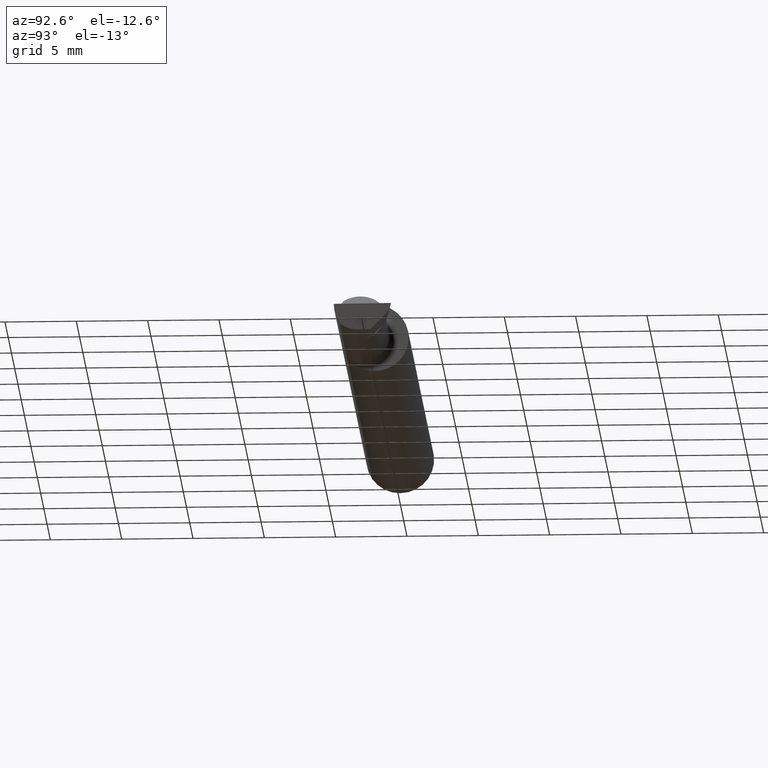
[diagram: clean part render]
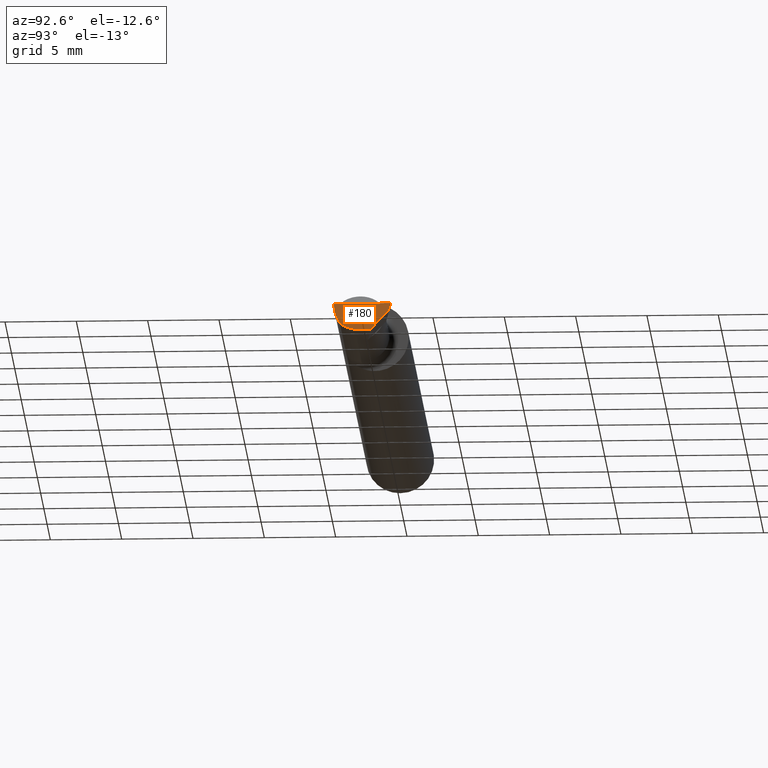
[diagram: same view with one face highlighted and labeled with its STEP entity id]
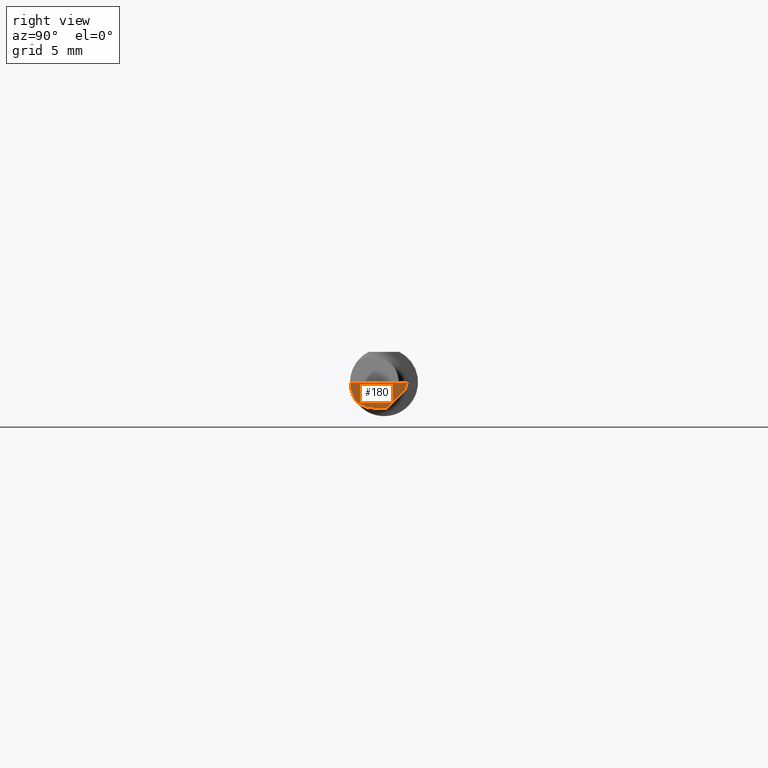
[diagram: same view with one face highlighted and labeled with its STEP entity id]
A machine part, auxiliary view. The second image highlights one B-rep face of the part: STEP entity #180.
A second angle (right view) of the same face is appended — the face is thin or edge-on in the first view.
In plain terms, the highlighted planar face has unit normal (-0.9922, 0.026, 0.1219).
Its self-contained STEP definition (entity closure, byte-faithful):
#6 = CARTESIAN_POINT ( 'NONE',  ( 1.989680968235101988, -0.07646557377049184590, -0.05398125626501730501 ) ) ;
#23 = CARTESIAN_POINT ( 'NONE',  ( 2.000000000000003109, 0.06440000000001327995, 4.265097680108330883E-14 ) ) ;
#25 = AXIS2_PLACEMENT_3D ( 'NONE', #160, #256, #347 ) ;
#42 = CARTESIAN_POINT ( 'NONE',  ( 1.987153287650115008, -0.009717623157789186117, -0.08879077981908643780 ) ) ;
#52 = EDGE_CURVE ( 'NONE', #364, #545, #431, .T. ) ;
#53 = CARTESIAN_POINT ( 'NONE',  ( 1.997375993425184904, 0.05800444260848384992, -0.01999999999999999001 ) ) ;
#74 = ORIENTED_EDGE ( 'NONE', *, *, #52, .F. ) ;
#92 = CARTESIAN_POINT ( 'NONE',  ( 1.988806546520622609, -0.03049999999999999586, -0.07090000000000000469 ) ) ;
#102 = VERTEX_POINT ( 'NONE', #287 ) ;
#117 = LINE ( 'NONE', #42, #324 ) ;
#143 = CARTESIAN_POINT ( 'NONE',  ( 1.995862624392067852, -0.09360000000000009979, -6.605666309584449409E-17 ) ) ;
#158 = ORIENTED_EDGE ( 'NONE', *, *, #212, .F. ) ;
#160 = CARTESIAN_POINT ( 'NONE',  ( 1.986456763647800550, -0.06267397991240475363, -0.08317158399080336328 ) ) ;
#179 = CARTESIAN_POINT ( 'NONE',  ( 1.988664666329833741, -0.06350290078668613392, -0.06501910055627768692 ) ) ;
#180 = ADVANCED_FACE ( 'NONE', ( #526 ), #299, .F. ) ;
#203 =( BOUNDED_CURVE ( )  B_SPLINE_CURVE ( 3, ( #446, #179, #502, #92 ),
 .UNSPECIFIED., .F., .T. ) 
 B_SPLINE_CURVE_WITH_KNOTS ( ( 4, 4 ),
 ( 5.787864769132275988, 6.493234751459696419 ),
 .UNSPECIFIED. ) 
 CURVE ( )  GEOMETRIC_REPRESENTATION_ITEM ( )  RATIONAL_B_SPLINE_CURVE ( ( 1.000000000000000000, 0.9589657668801497836, 0.9589657668801497836, 1.000000000000000000 ) ) 
 REPRESENTATION_ITEM ( '' )  );
#212 = EDGE_CURVE ( 'NONE', #545, #333, #294, .T. ) ;
#241 = DIRECTION ( 'NONE',  ( -0.02617694830786038498, -0.9996573249755575929, 0.0000000000000000000 ) ) ;
#246 = LINE ( 'NONE', #473, #547 ) ;
#256 = DIRECTION ( 'NONE',  ( -0.9922060308645512805, 0.02598182930468072652, 0.1218693434051217050 ) ) ;
#263 = CARTESIAN_POINT ( 'NONE',  ( 1.989811960493453435, 0.007895210578134158330, -0.07090000000000001856 ) ) ;
#287 = CARTESIAN_POINT ( 'NONE',  ( 1.988806546520622609, -0.03049999999999999586, -0.07090000000000000469 ) ) ;
#288 = EDGE_CURVE ( 'NONE', #333, #292, #117, .T. ) ;
#292 = VERTEX_POINT ( 'NONE', #263 ) ;
#294 = LINE ( 'NONE', #397, #596 ) ;
#299 = PLANE ( 'NONE',  #25 ) ;
#323 = EDGE_CURVE ( 'NONE', #356, #102, #203, .T. ) ;
#324 = VECTOR ( 'NONE', #593, 39.37007874015748143 ) ;
#328 = CARTESIAN_POINT ( 'NONE',  ( 1.991772787678610435, -0.2497845628634191573, -6.377686106282116365E-17 ) ) ;
#333 = VERTEX_POINT ( 'NONE', #53 ) ;
#340 = ORIENTED_EDGE ( 'NONE', *, *, #445, .F. ) ;
#347 = DIRECTION ( 'NONE',  ( 0.1219104985252570661, 0.0000000000000000000, 0.9925410975618708109 ) ) ;
#356 = VERTEX_POINT ( 'NONE', #6 ) ;
#364 = VERTEX_POINT ( 'NONE', #143 ) ;
#385 = CARTESIAN_POINT ( 'NONE',  ( 1.993469067315748022, -0.09360000000000003040, -0.01948727793214144466 ) ) ;
#397 = CARTESIAN_POINT ( 'NONE',  ( 1.989254605881540128, 0.03820997996014426773, -0.08190066459132541721 ) ) ;
#398 = EDGE_LOOP ( 'NONE', ( #480, #340, #527, #158, #74, #561 ) ) ;
#401 = EDGE_CURVE ( 'NONE', #356, #364, #572, .T. ) ;
#410 = DIRECTION ( 'NONE',  ( 0.02617694830786037805, 0.9996573249755575929, -1.459184416195409269E-17 ) ) ;
#431 = LINE ( 'NONE', #328, #544 ) ;
#445 = EDGE_CURVE ( 'NONE', #292, #102, #246, .T. ) ;
#446 = CARTESIAN_POINT ( 'NONE',  ( 1.989680968235101988, -0.07646557377049184590, -0.05398125626501730501 ) ) ;
#460 = CARTESIAN_POINT ( 'NONE',  ( 1.991342063257270034, -0.08770433171880959167, -0.03806132156089091223 ) ) ;
#469 = CARTESIAN_POINT ( 'NONE',  ( 1.989680968235101988, -0.07646557377049184590, -0.05398125626501730501 ) ) ;
#473 = CARTESIAN_POINT ( 'NONE',  ( 1.988814216640107491, -0.03020708995424807933, -0.07090000000000000469 ) ) ;
#480 = ORIENTED_EDGE ( 'NONE', *, *, #323, .T. ) ;
#492 = DIRECTION ( 'NONE',  ( -0.1240019227989063721, -0.3022330132596635077, -0.9451342385281351621 ) ) ;
#502 = CARTESIAN_POINT ( 'NONE',  ( 1.988360720229886081, -0.04752541915734221495, -0.07089999999999999081 ) ) ;
#524 = CARTESIAN_POINT ( 'NONE',  ( 1.995862624392067852, -0.09360000000000009979, -6.605666309584449409E-17 ) ) ;
#526 = FACE_OUTER_BOUND ( 'NONE', #398, .T. ) ;
#527 = ORIENTED_EDGE ( 'NONE', *, *, #288, .F. ) ;
#544 = VECTOR ( 'NONE', #410, 39.37007874015748854 ) ;
#545 = VERTEX_POINT ( 'NONE', #23 ) ;
#547 = VECTOR ( 'NONE', #241, 39.37007874015748854 ) ;
#561 = ORIENTED_EDGE ( 'NONE', *, *, #401, .F. ) ;
#572 =( BOUNDED_CURVE ( )  B_SPLINE_CURVE ( 3, ( #469, #460, #385, #524 ),
 .UNSPECIFIED., .F., .F. ) 
 B_SPLINE_CURVE_WITH_KNOTS ( ( 4, 4 ),
 ( 0.7460354263298282218, 1.360746882514785705 ),
 .UNSPECIFIED. ) 
 CURVE ( )  GEOMETRIC_REPRESENTATION_ITEM ( )  RATIONAL_B_SPLINE_CURVE ( ( 1.000000000000000000, 0.9687579316594154832, 0.9687579316594154832, 1.000000000000000000 ) ) 
 REPRESENTATION_ITEM ( '' )  );
#593 = DIRECTION ( 'NONE',  ( -0.1053106618241542308, -0.6976485211320179181, -0.7086580314005247461 ) ) ;
#596 = VECTOR ( 'NONE', #492, 39.37007874015748854 ) ;